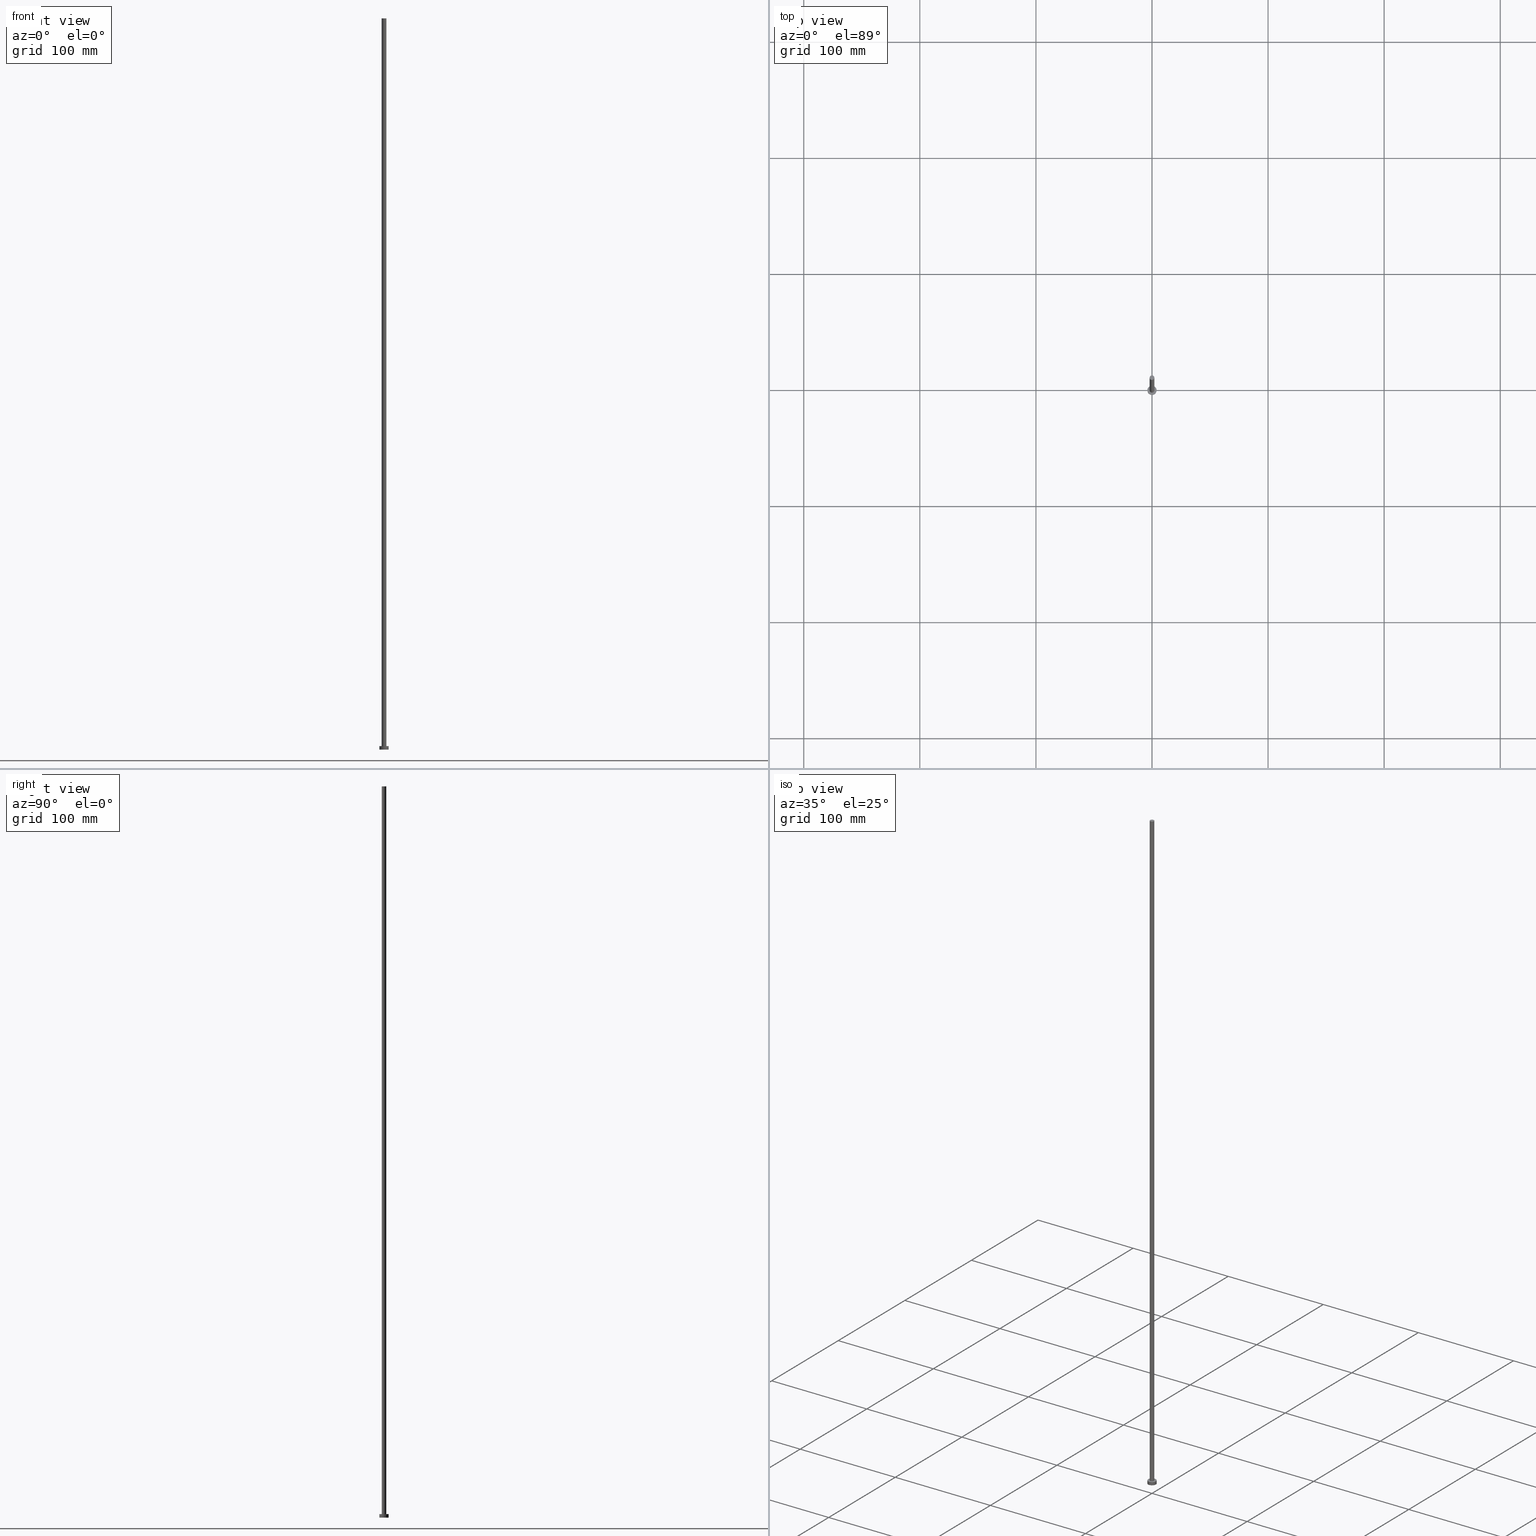
[diagram: canonical four-view strip — front | top / right | iso, engineering-drawing reading convention]
A machine part, canonical four-view strip (front | top / right | iso — engineering-drawing reading convention). The complete STEP part file that produces these views, byte-faithful:
ISO-10303-21;
HEADER;
FILE_DESCRIPTION (( 'STEP AP203' ),
    '1' );
FILE_NAME ('1155.STEP',
    '2023-02-12T12:38:24',
    ( '' ),
    ( '' ),
    'SwSTEP 2.0',
    'SolidWorks 2019',
    '' );
FILE_SCHEMA (( 'CONFIG_CONTROL_DESIGN' ));
ENDSEC;

DATA;
#1 = CARTESIAN_POINT ( 'NONE',  ( 0.000000000000000000, 0.000000000000000000, 630.0000000000000000 ) ) ;
#2 = DIRECTION ( 'NONE',  ( 1.000000000000000000, 0.000000000000000000, -0.000000000000000000 ) ) ;
#3 = CC_DESIGN_APPROVAL ( #225, ( #94 ) ) ;
#4 = EDGE_LOOP ( 'NONE', ( #9, #154, #5, #227 ) ) ;
#5 = ORIENTED_EDGE ( 'NONE', *, *, #150, .T. ) ;
#6 = VERTEX_POINT ( 'NONE', #226 ) ;
#7 = EDGE_CURVE ( 'NONE', #6, #95, #36, .T. ) ;
#8 = AXIS2_PLACEMENT_3D ( 'NONE', #162, #123, #103 ) ;
#9 = ORIENTED_EDGE ( 'NONE', *, *, #125, .F. ) ;
#10 = APPLICATION_CONTEXT ( 'configuration controlled 3d designs of mechanical parts and assemblies' ) ;
#11 = DIRECTION ( 'NONE',  ( -1.000000000000000000, 0.000000000000000000, 0.000000000000000000 ) ) ;
#12 = PERSON_AND_ORGANIZATION ( #145, #183 ) ;
#13 = CARTESIAN_POINT ( 'NONE',  ( 0.000000000000000000, 0.000000000000000000, 0.000000000000000000 ) ) ;
#14 = CC_DESIGN_PERSON_AND_ORGANIZATION_ASSIGNMENT ( #163, #140, ( #208 ) ) ;
#15 = COORDINATED_UNIVERSAL_TIME_OFFSET ( 1, 0, .AHEAD. ) ;
#16 = EDGE_CURVE ( 'NONE', #207, #49, #190, .T. ) ;
#17 = CARTESIAN_POINT ( 'NONE',  ( 0.000000000000000000, 0.000000000000000000, 630.0000000000000000 ) ) ;
#18 = CARTESIAN_POINT ( 'NONE',  ( 4.000000000000000000, 4.898587196589412829E-16, 0.000000000000000000 ) ) ;
#19 = LOCAL_TIME ( 13, 38, 24.00000000000000000, #249 ) ;
#20 = FACE_OUTER_BOUND ( 'NONE', #66, .T. ) ;
#21 = VECTOR ( 'NONE', #168, 1000.000000000000000 ) ;
#22 = PRODUCT ( '1155', '1155', '', ( #48 ) ) ;
#23 = ORIENTED_EDGE ( 'NONE', *, *, #150, .F. ) ;
#24 = CIRCLE ( 'NONE', #118, 2.000000000000000000 ) ;
#25 = EDGE_CURVE ( 'NONE', #95, #6, #57, .T. ) ;
#26 = DIRECTION ( 'NONE',  ( 1.000000000000000000, 0.000000000000000000, 0.000000000000000000 ) ) ;
#27 = APPROVAL_PERSON_ORGANIZATION ( #126, #58, #148 ) ;
#28 = VERTEX_POINT ( 'NONE', #245 ) ;
#29 = ADVANCED_FACE ( 'NONE', ( #159 ), #75, .T. ) ;
#30 = ORIENTED_EDGE ( 'NONE', *, *, #61, .F. ) ;
#31 = PRODUCT_DEFINITION ( 'NEZN�M�', '', #208, #213 ) ;
#32 = AXIS2_PLACEMENT_3D ( 'NONE', #109, #67, #250 ) ;
#33 = CARTESIAN_POINT ( 'NONE',  ( 0.000000000000000000, 0.000000000000000000, 3.000000000000000000 ) ) ;
#34 = CIRCLE ( 'NONE', #217, 4.000000000000000000 ) ;
#35 = PERSON_AND_ORGANIZATION ( #145, #183 ) ;
#36 = CIRCLE ( 'NONE', #176, 2.000000000000000000 ) ;
#37 = LOCAL_TIME ( 13, 38, 24.00000000000000000, #191 ) ;
#38 = APPROVAL_DATE_TIME ( #198, #225 ) ;
#39 = AXIS2_PLACEMENT_3D ( 'NONE', #155, #56, #121 ) ;
#40 = CARTESIAN_POINT ( 'NONE',  ( -2.000000000000000000, 0.000000000000000000, 630.0000000000000000 ) ) ;
#41 =( NAMED_UNIT ( * ) PLANE_ANGLE_UNIT ( ) SI_UNIT ( $, .RADIAN. ) );
#42 = CARTESIAN_POINT ( 'NONE',  ( 0.000000000000000000, 0.000000000000000000, 0.000000000000000000 ) ) ;
#43 = EDGE_CURVE ( 'NONE', #49, #207, #156, .T. ) ;
#44 = VECTOR ( 'NONE', #169, 1000.000000000000000 ) ;
#45 = CARTESIAN_POINT ( 'NONE',  ( -4.000000000000000000, 0.000000000000000000, 3.000000000000000000 ) ) ;
#46 = PRODUCT_RELATED_PRODUCT_CATEGORY ( 'detail', '', ( #22 ) ) ;
#47 = VERTEX_POINT ( 'NONE', #247 ) ;
#48 = MECHANICAL_CONTEXT ( 'NONE', #77, 'mechanical' ) ;
#49 = VERTEX_POINT ( 'NONE', #197 ) ;
#50 = ORIENTED_EDGE ( 'NONE', *, *, #251, .T. ) ;
#51 = PERSON_AND_ORGANIZATION_ROLE ( 'design_owner' ) ;
#52 = CARTESIAN_POINT ( 'NONE',  ( 0.000000000000000000, 0.000000000000000000, 3.000000000000000000 ) ) ;
#53 = FACE_BOUND ( 'NONE', #210, .T. ) ;
#54 = PERSON_AND_ORGANIZATION_ROLE ( 'classification_officer' ) ;
#55 = AXIS2_PLACEMENT_3D ( 'NONE', #42, #220, #142 ) ;
#56 = DIRECTION ( 'NONE',  ( -0.000000000000000000, -0.000000000000000000, -1.000000000000000000 ) ) ;
#57 = CIRCLE ( 'NONE', #205, 2.000000000000000000 ) ;
#58 = APPROVAL ( #243, 'NEUR�EN�' ) ;
#59 = AXIS2_PLACEMENT_3D ( 'NONE', #181, #235, #63 ) ;
#60 = DIRECTION ( 'NONE',  ( 1.000000000000000000, 0.000000000000000000, 0.000000000000000000 ) ) ;
#61 = EDGE_CURVE ( 'NONE', #47, #224, #34, .T. ) ;
#62 = CARTESIAN_POINT ( 'NONE',  ( -2.000000000000000000, 0.000000000000000000, 3.000000000000000000 ) ) ;
#63 = DIRECTION ( 'NONE',  ( 1.000000000000000000, 0.000000000000000000, 0.000000000000000000 ) ) ;
#64 = APPLICATION_PROTOCOL_DEFINITION ( 'international standard', 'config_control_design', 1994, #10 ) ;
#65 = ADVANCED_FACE ( 'NONE', ( #53, #78 ), #173, .T. ) ;
#66 = EDGE_LOOP ( 'NONE', ( #71, #206 ) ) ;
#67 = DIRECTION ( 'NONE',  ( 0.000000000000000000, 0.000000000000000000, 1.000000000000000000 ) ) ;
#68 = EDGE_LOOP ( 'NONE', ( #112, #97, #50, #171 ) ) ;
#69 = CC_DESIGN_PERSON_AND_ORGANIZATION_ASSIGNMENT ( #102, #85, ( #208 ) ) ;
#70 = CC_DESIGN_PERSON_AND_ORGANIZATION_ASSIGNMENT ( #12, #51, ( #22 ) ) ;
#71 = ORIENTED_EDGE ( 'NONE', *, *, #91, .T. ) ;
#72 = CARTESIAN_POINT ( 'NONE',  ( 0.000000000000000000, 0.000000000000000000, 3.000000000000000000 ) ) ;
#73 = AXIS2_PLACEMENT_3D ( 'NONE', #52, #98, #141 ) ;
#74 = PERSON_AND_ORGANIZATION ( #145, #183 ) ;
#75 = CYLINDRICAL_SURFACE ( 'NONE', #39, 2.000000000000000000 ) ;
#76 = DATE_AND_TIME ( #114, #120 ) ;
#77 = APPLICATION_CONTEXT ( 'configuration controlled 3d designs of mechanical parts and assemblies' ) ;
#78 = FACE_OUTER_BOUND ( 'NONE', #241, .T. ) ;
#79 = DIRECTION ( 'NONE',  ( 0.000000000000000000, 0.000000000000000000, 1.000000000000000000 ) ) ;
#80 = CIRCLE ( 'NONE', #59, 4.000000000000000000 ) ;
#81 = LINE ( 'NONE', #179, #21 ) ;
#82 = CC_DESIGN_SECURITY_CLASSIFICATION ( #94, ( #208 ) ) ;
#83 = CALENDAR_DATE ( 2023, 12, 2 ) ;
#84 = ADVANCED_BREP_SHAPE_REPRESENTATION ( '1155', ( #90, #151 ), #87 ) ;
#85 = PERSON_AND_ORGANIZATION_ROLE ( 'creator' ) ;
#86 = CYLINDRICAL_SURFACE ( 'NONE', #244, 2.000000000000000000 ) ;
#87 =( GEOMETRIC_REPRESENTATION_CONTEXT ( 3 ) GLOBAL_UNCERTAINTY_ASSIGNED_CONTEXT ( ( #132 ) ) GLOBAL_UNIT_ASSIGNED_CONTEXT ( ( #221, #41, #107 ) ) REPRESENTATION_CONTEXT ( 'NONE', 'WORKASPACE' ) );
#88 = ADVANCED_FACE ( 'NONE', ( #135 ), #212, .T. ) ;
#89 = DIRECTION ( 'NONE',  ( -0.000000000000000000, -0.000000000000000000, -1.000000000000000000 ) ) ;
#90 = MANIFOLD_SOLID_BREP ( 'P�idat vysunut�m3', #204 ) ;
#91 = EDGE_CURVE ( 'NONE', #133, #28, #139, .T. ) ;
#92 = ORIENTED_EDGE ( 'NONE', *, *, #7, .F. ) ;
#93 = ORIENTED_EDGE ( 'NONE', *, *, #255, .T. ) ;
#94 = SECURITY_CLASSIFICATION ( '', '', #165 ) ;
#95 = VERTEX_POINT ( 'NONE', #62 ) ;
#96 = ADVANCED_FACE ( 'NONE', ( #164 ), #86, .T. ) ;
#97 = ORIENTED_EDGE ( 'NONE', *, *, #16, .F. ) ;
#98 = DIRECTION ( 'NONE',  ( 0.000000000000000000, 0.000000000000000000, 1.000000000000000000 ) ) ;
#99 = DATE_TIME_ROLE ( 'creation_date' ) ;
#100 = CARTESIAN_POINT ( 'NONE',  ( 0.000000000000000000, 0.000000000000000000, 630.0000000000000000 ) ) ;
#101 = LOCAL_TIME ( 13, 38, 24.00000000000000000, #15 ) ;
#102 = PERSON_AND_ORGANIZATION ( #145, #183 ) ;
#103 = DIRECTION ( 'NONE',  ( -1.000000000000000000, 0.000000000000000000, 0.000000000000000000 ) ) ;
#104 = LINE ( 'NONE', #167, #166 ) ;
#105 = DATE_AND_TIME ( #214, #187 ) ;
#106 = AXIS2_PLACEMENT_3D ( 'NONE', #33, #192, #11 ) ;
#107 =( NAMED_UNIT ( * ) SI_UNIT ( $, .STERADIAN. ) SOLID_ANGLE_UNIT ( ) );
#108 = ORIENTED_EDGE ( 'NONE', *, *, #43, .F. ) ;
#109 = CARTESIAN_POINT ( 'NONE',  ( 0.000000000000000000, 0.000000000000000000, 3.000000000000000000 ) ) ;
#110 = ADVANCED_FACE ( 'NONE', ( #253 ), #199, .T. ) ;
#111 = EDGE_LOOP ( 'NONE', ( #239, #149, #146, #23 ) ) ;
#112 = ORIENTED_EDGE ( 'NONE', *, *, #219, .F. ) ;
#113 = ADVANCED_FACE ( 'NONE', ( #20 ), #124, .T. ) ;
#114 = CALENDAR_DATE ( 2023, 12, 2 ) ;
#115 = EDGE_LOOP ( 'NONE', ( #30, #209 ) ) ;
#116 = APPLICATION_PROTOCOL_DEFINITION ( 'international standard', 'config_control_design', 1994, #77 ) ;
#117 = DIRECTION ( 'NONE',  ( 0.000000000000000000, 0.000000000000000000, 1.000000000000000000 ) ) ;
#118 = AXIS2_PLACEMENT_3D ( 'NONE', #17, #216, #60 ) ;
#119 = DATE_AND_TIME ( #160, #101 ) ;
#120 = LOCAL_TIME ( 13, 38, 24.00000000000000000, #134 ) ;
#121 = DIRECTION ( 'NONE',  ( -1.000000000000000000, 0.000000000000000000, 0.000000000000000000 ) ) ;
#122 = LINE ( 'NONE', #234, #44 ) ;
#123 = DIRECTION ( 'NONE',  ( -0.000000000000000000, -0.000000000000000000, -1.000000000000000000 ) ) ;
#124 = PLANE ( 'NONE',  #143 ) ;
#125 = EDGE_CURVE ( 'NONE', #28, #6, #81, .T. ) ;
#126 = PERSON_AND_ORGANIZATION ( #145, #183 ) ;
#127 = ORIENTED_EDGE ( 'NONE', *, *, #43, .T. ) ;
#128 = CARTESIAN_POINT ( 'NONE',  ( 0.000000000000000000, 0.000000000000000000, 3.000000000000000000 ) ) ;
#129 = PRODUCT_DEFINITION_SHAPE ( 'NONE', 'NONE',  #31 ) ;
#130 = APPROVAL ( #157, 'NEUR�EN�' ) ;
#131 = ADVANCED_FACE ( 'NONE', ( #233 ), #186, .F. ) ;
#132 = UNCERTAINTY_MEASURE_WITH_UNIT (LENGTH_MEASURE( 1.000000000000000082E-05 ), #221, 'distance_accuracy_value', 'NONE');
#133 = VERTEX_POINT ( 'NONE', #40 ) ;
#134 = COORDINATED_UNIVERSAL_TIME_OFFSET ( 1, 0, .AHEAD. ) ;
#135 = FACE_OUTER_BOUND ( 'NONE', #68, .T. ) ;
#136 = CC_DESIGN_DATE_AND_TIME_ASSIGNMENT ( #228, #99, ( #31 ) ) ;
#137 = PERSON_AND_ORGANIZATION ( #145, #183 ) ;
#138 = SHAPE_DEFINITION_REPRESENTATION ( #129, #84 ) ;
#139 = CIRCLE ( 'NONE', #194, 2.000000000000000000 ) ;
#140 = PERSON_AND_ORGANIZATION_ROLE ( 'design_supplier' ) ;
#141 = DIRECTION ( 'NONE',  ( 1.000000000000000000, 0.000000000000000000, 0.000000000000000000 ) ) ;
#142 = DIRECTION ( 'NONE',  ( 1.000000000000000000, 0.000000000000000000, -0.000000000000000000 ) ) ;
#143 = AXIS2_PLACEMENT_3D ( 'NONE', #1, #218, #2 ) ;
#144 = CARTESIAN_POINT ( 'NONE',  ( -4.000000000000000000, 0.000000000000000000, 3.000000000000000000 ) ) ;
#145 = PERSON ( 'NEUR�EN�', 'NEUR�EN�', 'NEUR�EN�', ('NEUR�EN�'), ('NEUR�EN�'), ('NEUR�EN�') ) ;
#146 = ORIENTED_EDGE ( 'NONE', *, *, #7, .T. ) ;
#147 = CC_DESIGN_APPROVAL ( #58, ( #31 ) ) ;
#148 = APPROVAL_ROLE ( '' ) ;
#149 = ORIENTED_EDGE ( 'NONE', *, *, #125, .T. ) ;
#150 = EDGE_CURVE ( 'NONE', #133, #95, #104, .T. ) ;
#151 = AXIS2_PLACEMENT_3D ( 'NONE', #246, #117, #211 ) ;
#152 = ORIENTED_EDGE ( 'NONE', *, *, #16, .T. ) ;
#153 = EDGE_CURVE ( 'NONE', #28, #133, #24, .T. ) ;
#154 = ORIENTED_EDGE ( 'NONE', *, *, #91, .F. ) ;
#155 = CARTESIAN_POINT ( 'NONE',  ( 0.000000000000000000, 0.000000000000000000, 630.0000000000000000 ) ) ;
#156 = CIRCLE ( 'NONE', #73, 4.000000000000000000 ) ;
#157 = APPROVAL_STATUS ( 'not_yet_approved' ) ;
#158 = APPROVAL_DATE_TIME ( #76, #58 ) ;
#159 = FACE_OUTER_BOUND ( 'NONE', #111, .T. ) ;
#160 = CALENDAR_DATE ( 2023, 12, 2 ) ;
#161 = DIRECTION ( 'NONE',  ( 0.000000000000000000, 0.000000000000000000, 1.000000000000000000 ) ) ;
#162 = CARTESIAN_POINT ( 'NONE',  ( 0.000000000000000000, 0.000000000000000000, 3.000000000000000000 ) ) ;
#163 = PERSON_AND_ORGANIZATION ( #145, #183 ) ;
#164 = FACE_OUTER_BOUND ( 'NONE', #4, .T. ) ;
#165 = SECURITY_CLASSIFICATION_LEVEL ( 'unclassified' ) ;
#166 = VECTOR ( 'NONE', #89, 1000.000000000000000 ) ;
#167 = CARTESIAN_POINT ( 'NONE',  ( -2.000000000000000000, 0.000000000000000000, 630.0000000000000000 ) ) ;
#168 = DIRECTION ( 'NONE',  ( -0.000000000000000000, -0.000000000000000000, -1.000000000000000000 ) ) ;
#169 = DIRECTION ( 'NONE',  ( -0.000000000000000000, -0.000000000000000000, -1.000000000000000000 ) ) ;
#170 = DIRECTION ( 'NONE',  ( 0.000000000000000000, 0.000000000000000000, 1.000000000000000000 ) ) ;
#171 = ORIENTED_EDGE ( 'NONE', *, *, #61, .T. ) ;
#172 = CALENDAR_DATE ( 2023, 12, 2 ) ;
#173 = PLANE ( 'NONE',  #252 ) ;
#174 = DIRECTION ( 'NONE',  ( 0.000000000000000000, 0.000000000000000000, 1.000000000000000000 ) ) ;
#175 = VECTOR ( 'NONE', #236, 1000.000000000000000 ) ;
#176 = AXIS2_PLACEMENT_3D ( 'NONE', #128, #170, #26 ) ;
#177 = APPROVAL_STATUS ( 'not_yet_approved' ) ;
#178 = CARTESIAN_POINT ( 'NONE',  ( 0.000000000000000000, 0.000000000000000000, 3.000000000000000000 ) ) ;
#179 = CARTESIAN_POINT ( 'NONE',  ( 2.000000000000000000, 2.449293598294706414E-16, 630.0000000000000000 ) ) ;
#180 = DATE_TIME_ROLE ( 'classification_date' ) ;
#181 = CARTESIAN_POINT ( 'NONE',  ( 0.000000000000000000, 0.000000000000000000, 0.000000000000000000 ) ) ;
#182 = DIRECTION ( 'NONE',  ( -1.000000000000000000, 0.000000000000000000, 0.000000000000000000 ) ) ;
#183 = ORGANIZATION ( 'NEUR�EN�', 'NEUR�EN�', '' ) ;
#184 = CARTESIAN_POINT ( 'NONE',  ( 0.000000000000000000, 0.000000000000000000, 630.0000000000000000 ) ) ;
#185 = APPROVAL_PERSON_ORGANIZATION ( #74, #130, #230 ) ;
#186 = PLANE ( 'NONE',  #55 ) ;
#187 = LOCAL_TIME ( 13, 38, 24.00000000000000000, #232 ) ;
#188 = ORIENTED_EDGE ( 'NONE', *, *, #25, .F. ) ;
#189 = PERSON_AND_ORGANIZATION_ROLE ( 'creator' ) ;
#190 = CIRCLE ( 'NONE', #32, 4.000000000000000000 ) ;
#191 = COORDINATED_UNIVERSAL_TIME_OFFSET ( 1, 0, .AHEAD. ) ;
#192 = DIRECTION ( 'NONE',  ( -0.000000000000000000, -0.000000000000000000, -1.000000000000000000 ) ) ;
#193 = DIRECTION ( 'NONE',  ( 0.000000000000000000, 0.000000000000000000, 1.000000000000000000 ) ) ;
#194 = AXIS2_PLACEMENT_3D ( 'NONE', #100, #174, #200 ) ;
#195 = APPROVAL_DATE_TIME ( #105, #130 ) ;
#196 = APPROVAL_ROLE ( '' ) ;
#197 = CARTESIAN_POINT ( 'NONE',  ( 4.000000000000000000, 4.898587196589412829E-16, 3.000000000000000000 ) ) ;
#198 = DATE_AND_TIME ( #83, #19 ) ;
#199 = CYLINDRICAL_SURFACE ( 'NONE', #8, 4.000000000000000000 ) ;
#200 = DIRECTION ( 'NONE',  ( 1.000000000000000000, 0.000000000000000000, 0.000000000000000000 ) ) ;
#201 = CC_DESIGN_DATE_AND_TIME_ASSIGNMENT ( #119, #180, ( #94 ) ) ;
#202 = DIRECTION ( 'NONE',  ( -0.000000000000000000, -0.000000000000000000, -1.000000000000000000 ) ) ;
#203 = LINE ( 'NONE', #144, #175 ) ;
#204 = CLOSED_SHELL ( 'NONE', ( #29, #110, #88, #65, #131, #96, #113 ) ) ;
#205 = AXIS2_PLACEMENT_3D ( 'NONE', #178, #79, #229 ) ;
#206 = ORIENTED_EDGE ( 'NONE', *, *, #153, .T. ) ;
#207 = VERTEX_POINT ( 'NONE', #45 ) ;
#208 = PRODUCT_DEFINITION_FORMATION_WITH_SPECIFIED_SOURCE ( 'LIBOVOLN�', '', #22, .NOT_KNOWN. ) ;
#209 = ORIENTED_EDGE ( 'NONE', *, *, #255, .F. ) ;
#210 = EDGE_LOOP ( 'NONE', ( #188, #92 ) ) ;
#211 = DIRECTION ( 'NONE',  ( 1.000000000000000000, 0.000000000000000000, 0.000000000000000000 ) ) ;
#212 = CYLINDRICAL_SURFACE ( 'NONE', #106, 4.000000000000000000 ) ;
#213 = DESIGN_CONTEXT ( 'detailed design', #10, 'design' ) ;
#214 = CALENDAR_DATE ( 2023, 12, 2 ) ;
#215 = DIRECTION ( 'NONE',  ( 1.000000000000000000, 0.000000000000000000, 0.000000000000000000 ) ) ;
#216 = DIRECTION ( 'NONE',  ( 0.000000000000000000, 0.000000000000000000, 1.000000000000000000 ) ) ;
#217 = AXIS2_PLACEMENT_3D ( 'NONE', #13, #161, #215 ) ;
#218 = DIRECTION ( 'NONE',  ( 0.000000000000000000, 0.000000000000000000, 1.000000000000000000 ) ) ;
#219 = EDGE_CURVE ( 'NONE', #49, #224, #122, .T. ) ;
#220 = DIRECTION ( 'NONE',  ( 0.000000000000000000, 0.000000000000000000, 1.000000000000000000 ) ) ;
#221 =( LENGTH_UNIT ( ) NAMED_UNIT ( * ) SI_UNIT ( .MILLI., .METRE. ) );
#222 = EDGE_LOOP ( 'NONE', ( #108, #237, #93, #240 ) ) ;
#223 = CC_DESIGN_PERSON_AND_ORGANIZATION_ASSIGNMENT ( #137, #189, ( #31 ) ) ;
#224 = VERTEX_POINT ( 'NONE', #18 ) ;
#225 = APPROVAL ( #177, 'NEUR�EN�' ) ;
#226 = CARTESIAN_POINT ( 'NONE',  ( 2.000000000000000000, 2.449293598294706414E-16, 3.000000000000000000 ) ) ;
#227 = ORIENTED_EDGE ( 'NONE', *, *, #25, .T. ) ;
#228 = DATE_AND_TIME ( #172, #37 ) ;
#229 = DIRECTION ( 'NONE',  ( 1.000000000000000000, 0.000000000000000000, 0.000000000000000000 ) ) ;
#230 = APPROVAL_ROLE ( '' ) ;
#231 = APPROVAL_PERSON_ORGANIZATION ( #254, #225, #196 ) ;
#232 = COORDINATED_UNIVERSAL_TIME_OFFSET ( 1, 0, .AHEAD. ) ;
#233 = FACE_OUTER_BOUND ( 'NONE', #115, .T. ) ;
#234 = CARTESIAN_POINT ( 'NONE',  ( 4.000000000000000000, 4.898587196589412829E-16, 3.000000000000000000 ) ) ;
#235 = DIRECTION ( 'NONE',  ( 0.000000000000000000, 0.000000000000000000, 1.000000000000000000 ) ) ;
#236 = DIRECTION ( 'NONE',  ( -0.000000000000000000, -0.000000000000000000, -1.000000000000000000 ) ) ;
#237 = ORIENTED_EDGE ( 'NONE', *, *, #219, .T. ) ;
#238 = CC_DESIGN_APPROVAL ( #130, ( #208 ) ) ;
#239 = ORIENTED_EDGE ( 'NONE', *, *, #153, .F. ) ;
#240 = ORIENTED_EDGE ( 'NONE', *, *, #251, .F. ) ;
#241 = EDGE_LOOP ( 'NONE', ( #152, #127 ) ) ;
#242 = DIRECTION ( 'NONE',  ( 1.000000000000000000, 0.000000000000000000, -0.000000000000000000 ) ) ;
#243 = APPROVAL_STATUS ( 'not_yet_approved' ) ;
#244 = AXIS2_PLACEMENT_3D ( 'NONE', #184, #202, #182 ) ;
#245 = CARTESIAN_POINT ( 'NONE',  ( 2.000000000000000000, 2.449293598294706414E-16, 630.0000000000000000 ) ) ;
#246 = CARTESIAN_POINT ( 'NONE',  ( 0.000000000000000000, 0.000000000000000000, 0.000000000000000000 ) ) ;
#247 = CARTESIAN_POINT ( 'NONE',  ( -4.000000000000000000, 0.000000000000000000, 0.000000000000000000 ) ) ;
#248 = CC_DESIGN_PERSON_AND_ORGANIZATION_ASSIGNMENT ( #35, #54, ( #94 ) ) ;
#249 = COORDINATED_UNIVERSAL_TIME_OFFSET ( 1, 0, .AHEAD. ) ;
#250 = DIRECTION ( 'NONE',  ( 1.000000000000000000, 0.000000000000000000, 0.000000000000000000 ) ) ;
#251 = EDGE_CURVE ( 'NONE', #207, #47, #203, .T. ) ;
#252 = AXIS2_PLACEMENT_3D ( 'NONE', #72, #193, #242 ) ;
#253 = FACE_OUTER_BOUND ( 'NONE', #222, .T. ) ;
#254 = PERSON_AND_ORGANIZATION ( #145, #183 ) ;
#255 = EDGE_CURVE ( 'NONE', #224, #47, #80, .T. ) ;
ENDSEC;
END-ISO-10303-21;
